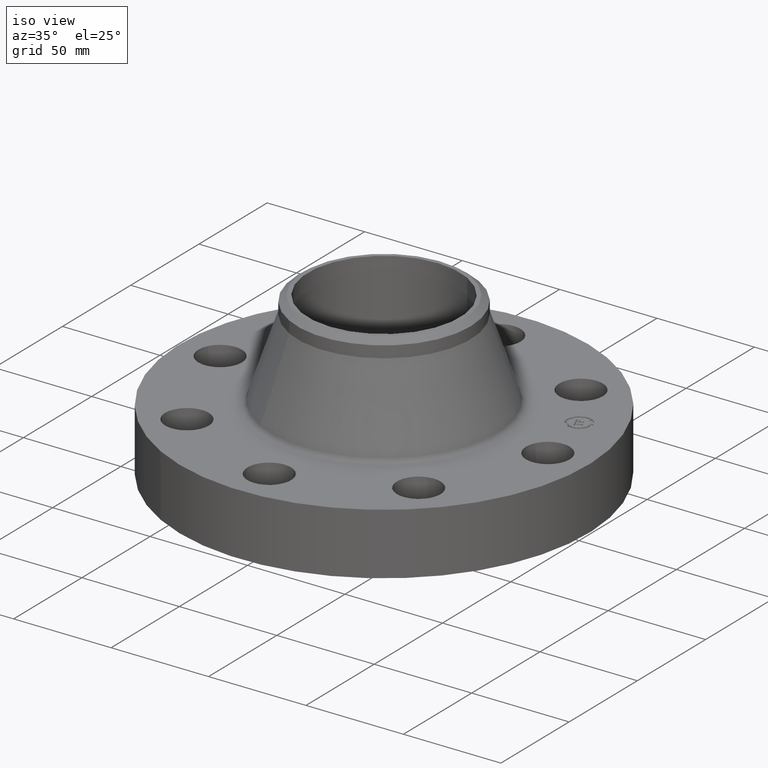
[diagram: clean part render]
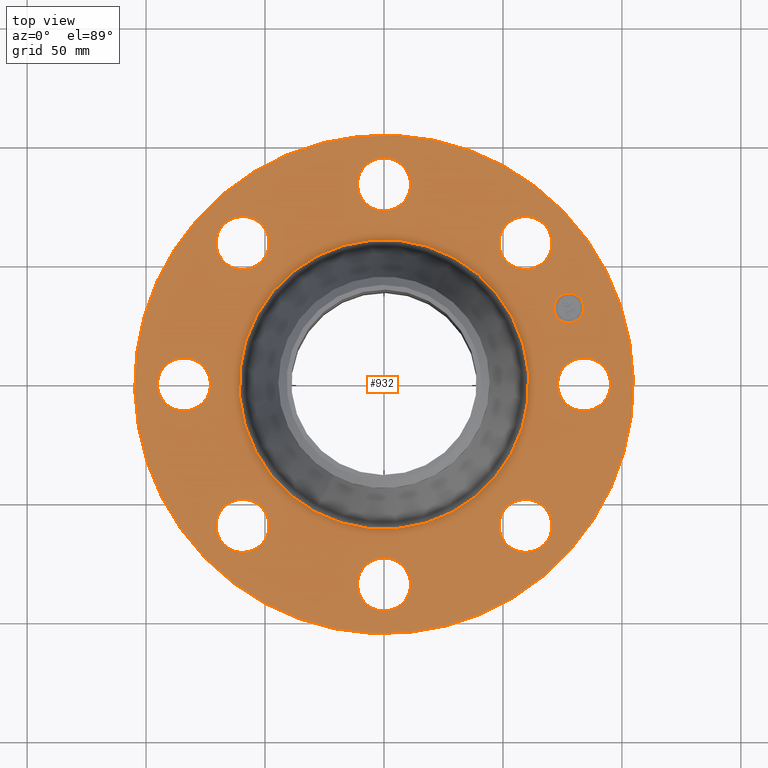
[diagram: tour spotlight — one face highlighted and labeled with its STEP entity id]
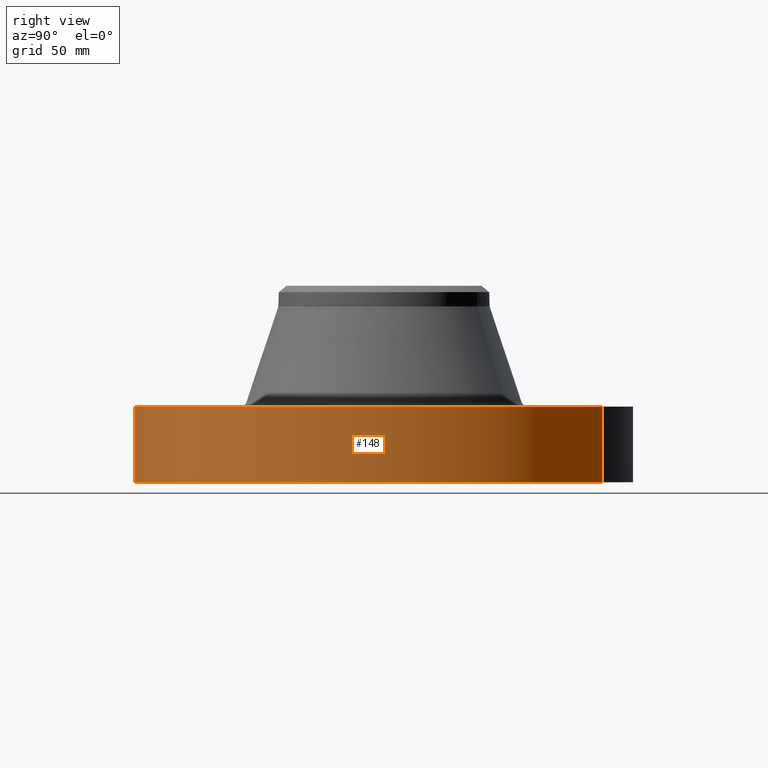
[diagram: tour spotlight — one face highlighted and labeled with its STEP entity id]
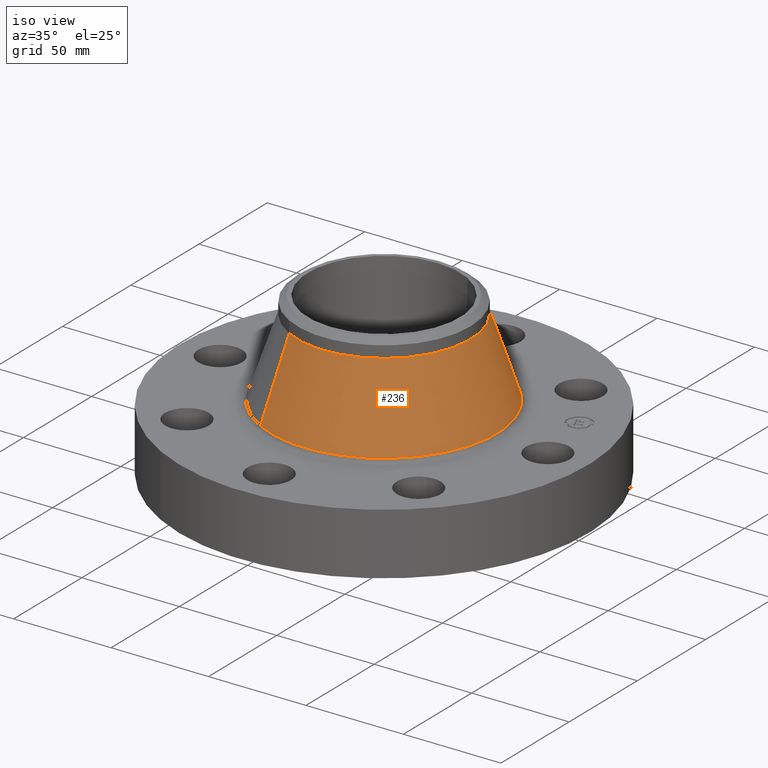
[diagram: tour spotlight — one face highlighted and labeled with its STEP entity id]
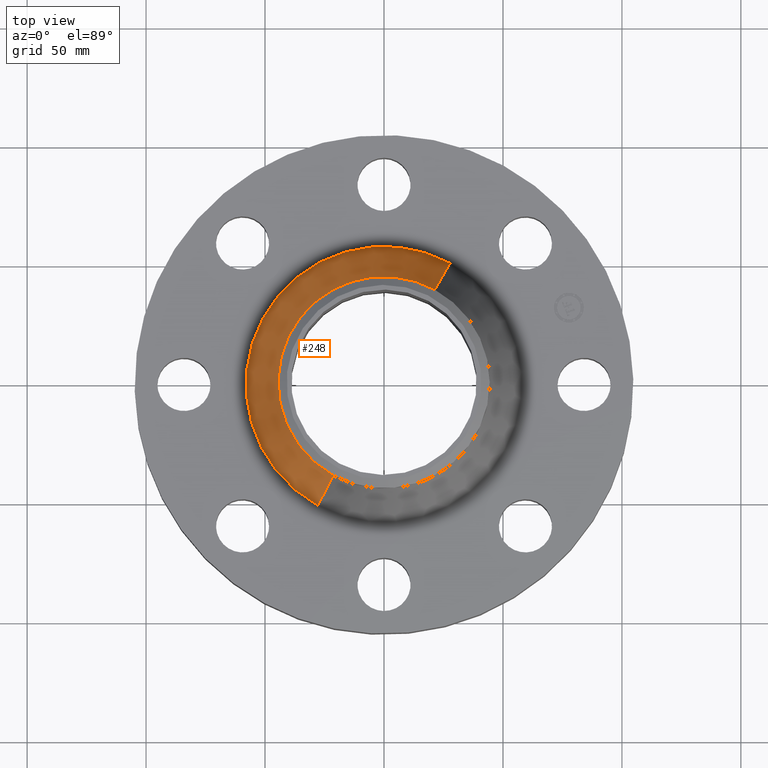
[diagram: tour spotlight — one face highlighted and labeled with its STEP entity id]
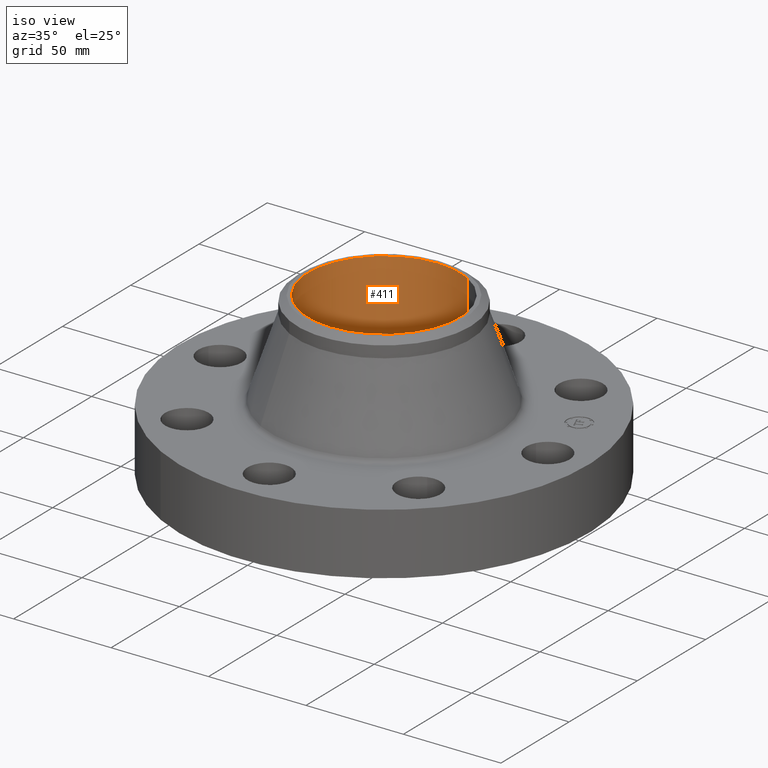
[diagram: tour spotlight — one face highlighted and labeled with its STEP entity id]
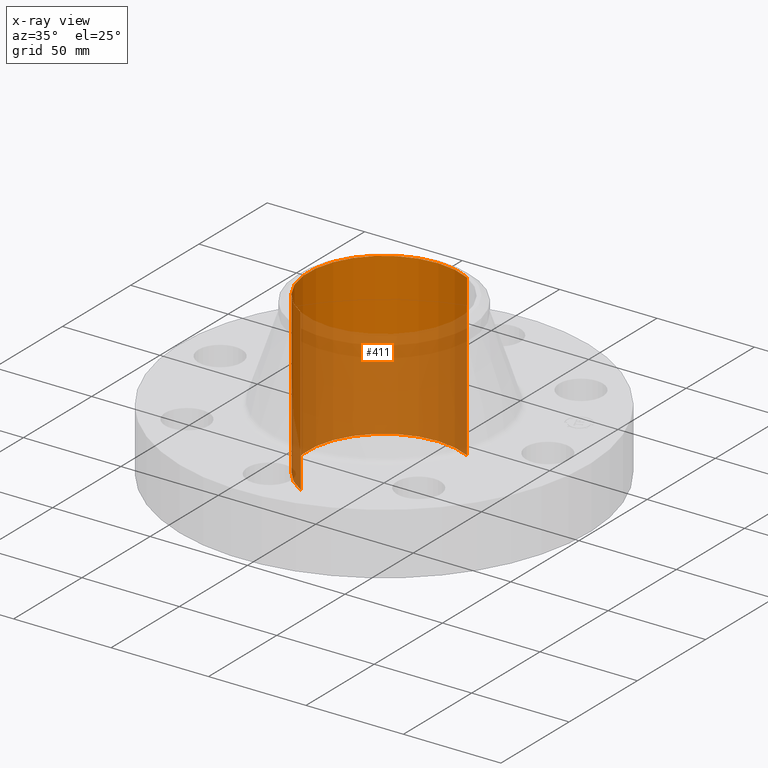
[diagram: x-ray of the same camera — body ghosted, this tour face saturated]
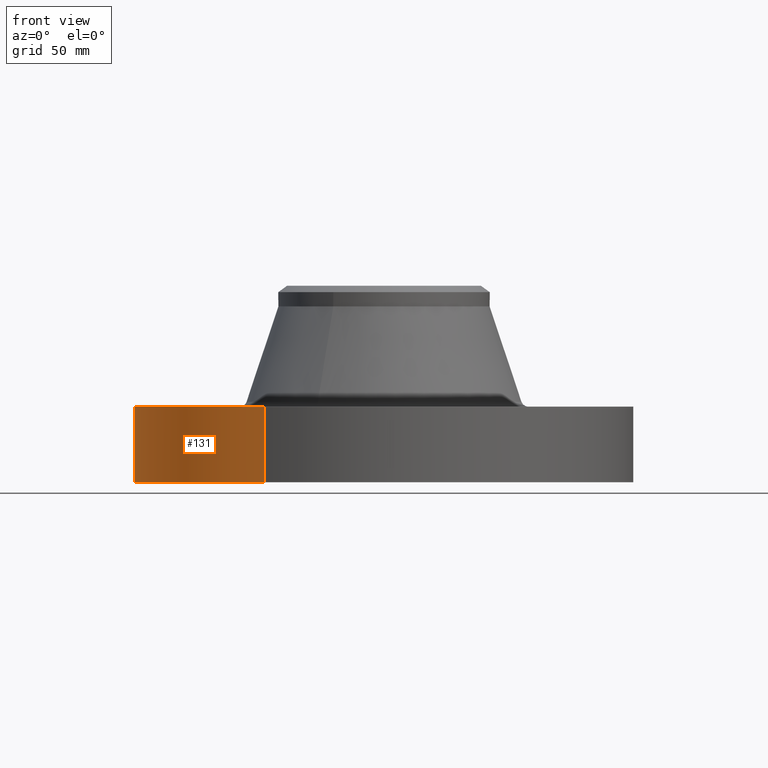
[diagram: tour spotlight — one face highlighted and labeled with its STEP entity id]
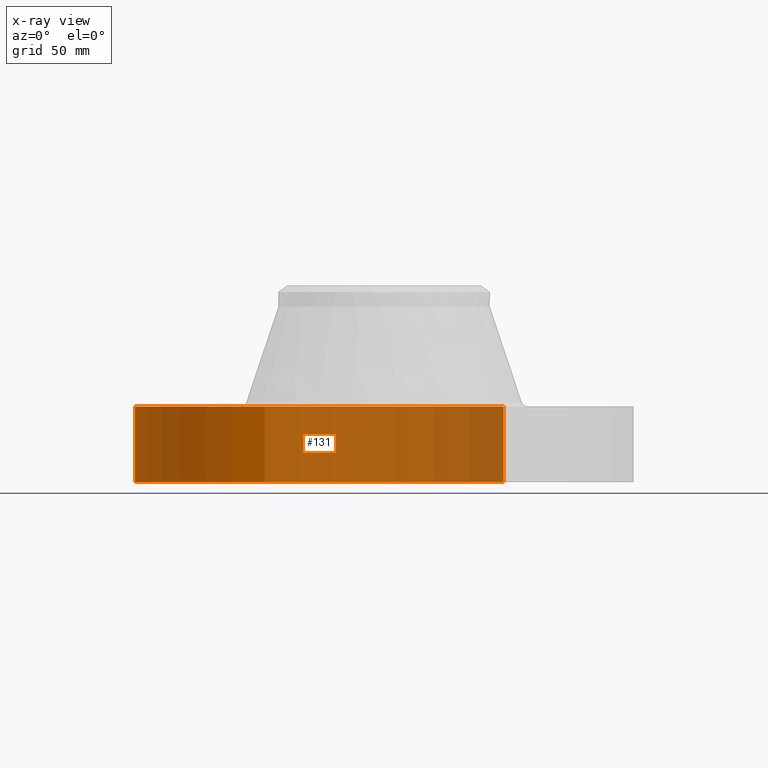
[diagram: x-ray of the same camera — body ghosted, this tour face saturated]
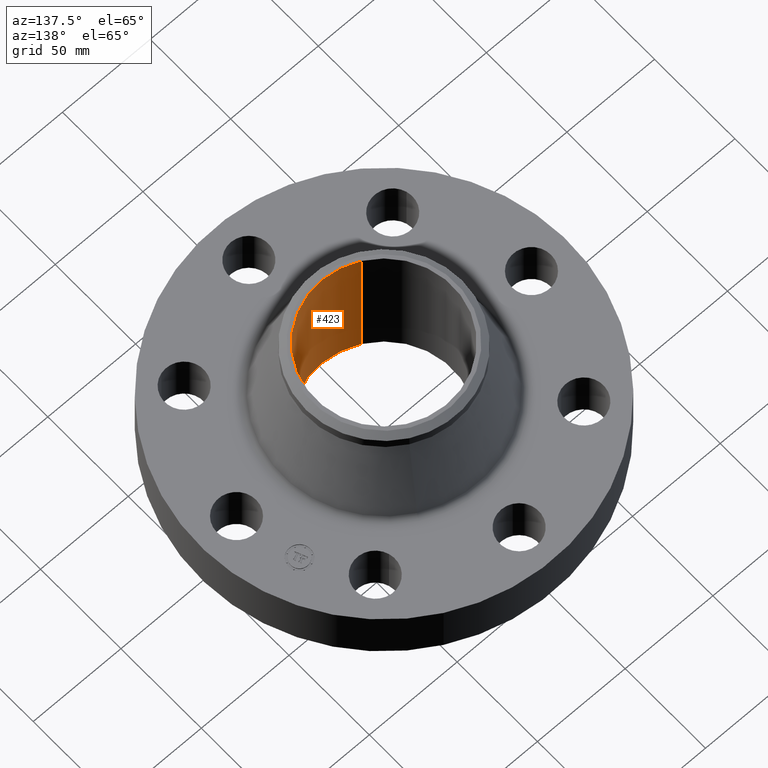
[diagram: tour spotlight — one face highlighted and labeled with its STEP entity id]
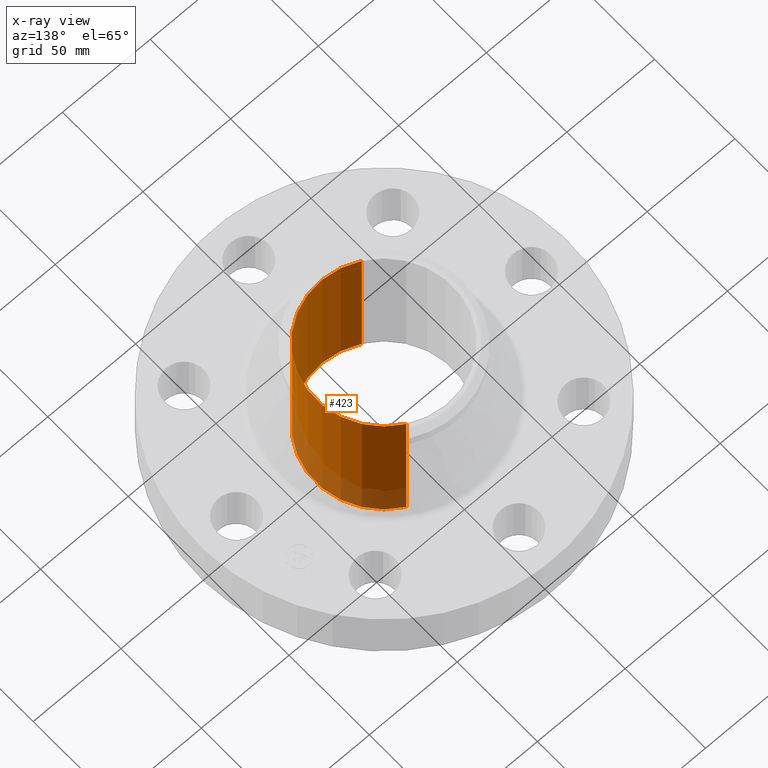
[diagram: x-ray of the same camera — body ghosted, this tour face saturated]
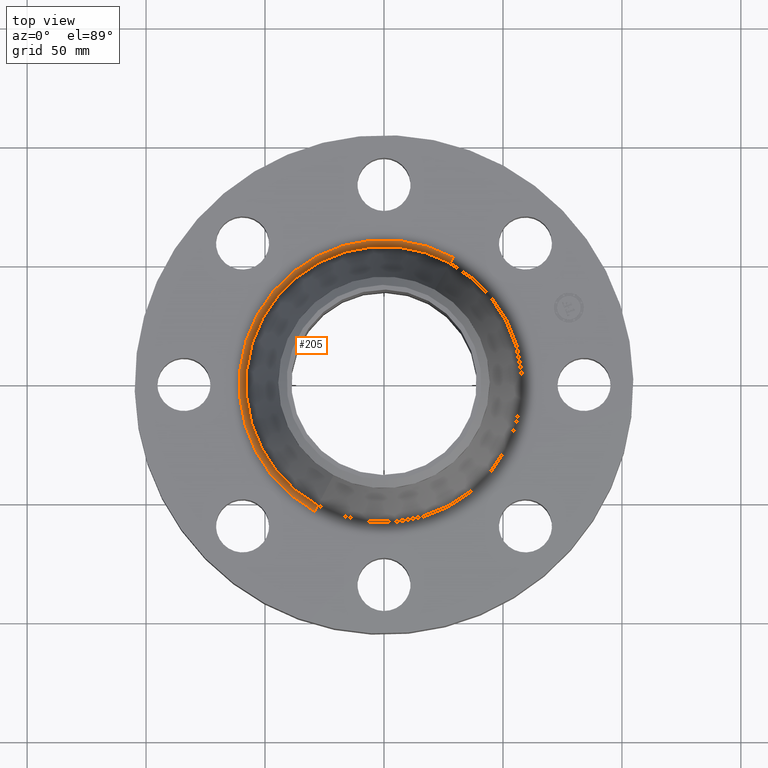
[diagram: tour spotlight — one face highlighted and labeled with its STEP entity id]
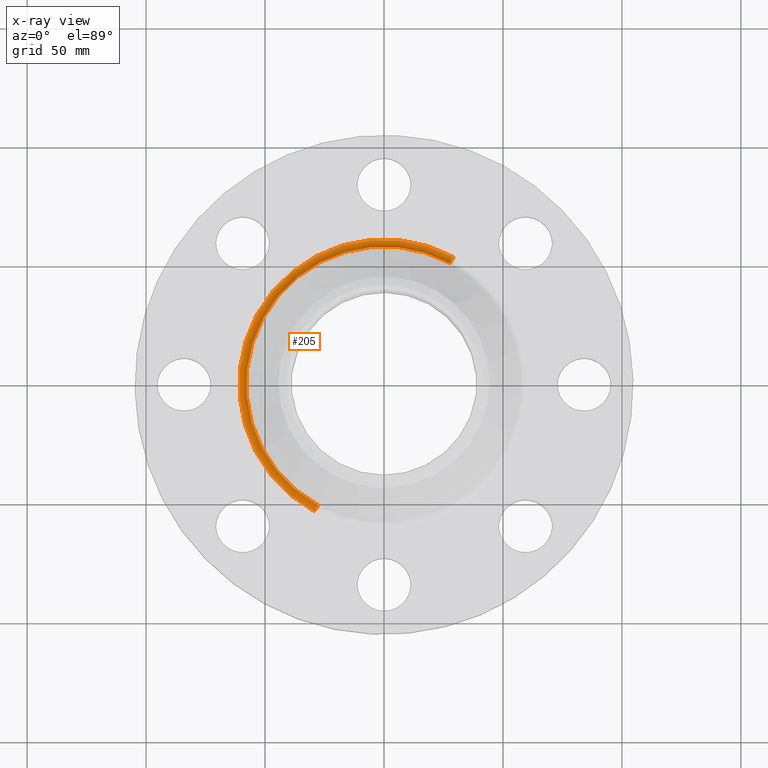
[diagram: x-ray of the same camera — body ghosted, this tour face saturated]
A machine part: a face-by-face anatomy tour. The part has 416 B-rep faces; the first image is the clean iso view, then the 8 largest visible faces are spotlighted one at a time (largest first), each with its STEP entity span.

Face 1 — top view, entity #932. In plain terms, the highlighted planar face has unit normal (0, 0, -1).
Definition (entity closure, byte-faithful):
#65=AXIS2_PLACEMENT_3D('Circle Axis2P3D',#63,#64,$) ;
#82=AXIS2_PLACEMENT_3D('Circle Axis2P3D',#80,#81,$) ;
#115=AXIS2_PLACEMENT_3D('Circle Axis2P3D',#113,#114,$) ;
#139=AXIS2_PLACEMENT_3D('Circle Axis2P3D',#137,#138,$) ;
#156=AXIS2_PLACEMENT_3D('Circle Axis2P3D',#154,#155,$) ;
#191=AXIS2_PLACEMENT_3D('Circle Axis2P3D',#189,#190,$) ;
#589=AXIS2_PLACEMENT_3D('Circle Axis2P3D',#587,#588,$) ;
#601=AXIS2_PLACEMENT_3D('Circle Axis2P3D',#599,#600,$) ;
#632=AXIS2_PLACEMENT_3D('Circle Axis2P3D',#630,#631,$) ;
#644=AXIS2_PLACEMENT_3D('Circle Axis2P3D',#642,#643,$) ;
#675=AXIS2_PLACEMENT_3D('Circle Axis2P3D',#673,#674,$) ;
#687=AXIS2_PLACEMENT_3D('Circle Axis2P3D',#685,#686,$) ;
#718=AXIS2_PLACEMENT_3D('Circle Axis2P3D',#716,#717,$) ;
#730=AXIS2_PLACEMENT_3D('Circle Axis2P3D',#728,#729,$) ;
#761=AXIS2_PLACEMENT_3D('Circle Axis2P3D',#759,#760,$) ;
#773=AXIS2_PLACEMENT_3D('Circle Axis2P3D',#771,#772,$) ;
#804=AXIS2_PLACEMENT_3D('Circle Axis2P3D',#802,#803,$) ;
#816=AXIS2_PLACEMENT_3D('Circle Axis2P3D',#814,#815,$) ;
#847=AXIS2_PLACEMENT_3D('Circle Axis2P3D',#845,#846,$) ;
#859=AXIS2_PLACEMENT_3D('Circle Axis2P3D',#857,#858,$) ;
#872=AXIS2_PLACEMENT_3D('Plane Axis2P3D',#869,#870,#871) ;
#916=AXIS2_PLACEMENT_3D('Circle Axis2P3D',#914,#915,$) ;
#925=AXIS2_PLACEMENT_3D('Circle Axis2P3D',#923,#924,$) ;
#46=CARTESIAN_POINT('Vertex',(2.92386367278,0.210947236987,1.25000000001)) ;
#60=CARTESIAN_POINT('Vertex',(3.69613632725,-0.210947236987,1.25000000001)) ;
#63=CARTESIAN_POINT('Axis2P3D Location',(3.31000000001,0.,1.25000000001)) ;
#80=CARTESIAN_POINT('Axis2P3D Location',(3.31000000001,0.,1.25000000001)) ;
#110=CARTESIAN_POINT('Vertex',(-1.97763034675,-3.62002806781,1.25000000001)) ;
#113=CARTESIAN_POINT('Axis2P3D Location',(0.,0.,1.25000000001)) ;
#117=CARTESIAN_POINT('Vertex',(1.97763034675,3.62002806781,1.25000000001)) ;
#137=CARTESIAN_POINT('Axis2P3D Location',(0.,0.,1.25000000001)) ;
#154=CARTESIAN_POINT('Axis2P3D Location',(0.,0.,1.25000000001)) ;
#158=CARTESIAN_POINT('Vertex',(1.14876916276,2.10280784752,1.25000000001)) ;
#160=CARTESIAN_POINT('Vertex',(-1.14876916276,-2.10280784752,1.25000000001)) ;
#189=CARTESIAN_POINT('Axis2P3D Location',(0.,0.,1.25000000001)) ;
#577=CARTESIAN_POINT('Vertex',(-2.21664605203,1.91832160854,1.25000000001)) ;
#584=CARTESIAN_POINT('Vertex',(-2.46440083944,2.76272528293,1.25000000001)) ;
#587=CARTESIAN_POINT('Axis2P3D Location',(-2.34052344574,2.34052344574,1.25000000001)) ;
#599=CARTESIAN_POINT('Axis2P3D Location',(-2.34052344574,2.34052344574,1.25000000001)) ;
#620=CARTESIAN_POINT('Vertex',(0.210947236987,-2.92386367278,1.25000000001)) ;
#627=CARTESIAN_POINT('Vertex',(-0.210947236987,-3.69613632725,1.25000000001)) ;
#630=CARTESIAN_POINT('Axis2P3D Location',(-3.56803423843E-016,-3.31000000001,1.25000000001)) ;
#642=CARTESIAN_POINT('Axis2P3D Location',(-3.56803423843E-016,-3.31000000001,1.25000000001)) ;
#663=CARTESIAN_POINT('Vertex',(-0.210947236987,2.92386367278,1.25000000001)) ;
#670=CARTESIAN_POINT('Vertex',(0.210947236987,3.69613632725,1.25000000001)) ;
#673=CARTESIAN_POINT('Axis2P3D Location',(-6.08037135779E-016,3.31000000001,1.25000000001)) ;
#685=CARTESIAN_POINT('Axis2P3D Location',(-6.08037135779E-016,3.31000000001,1.25000000001)) ;
#706=CARTESIAN_POINT('Vertex',(-1.91832160854,-2.21664605203,1.25000000001)) ;
#713=CARTESIAN_POINT('Vertex',(-2.76272528293,-2.46440083944,1.25000000001)) ;
#716=CARTESIAN_POINT('Axis2P3D Location',(-2.34052344574,-2.34052344574,1.25000000001)) ;
#728=CARTESIAN_POINT('Axis2P3D Location',(-2.34052344574,-2.34052344574,1.25000000001)) ;
#749=CARTESIAN_POINT('Vertex',(1.91832160854,2.21664605203,1.25000000001)) ;
#756=CARTESIAN_POINT('Vertex',(2.76272528293,2.46440083944,1.25000000001)) ;
#759=CARTESIAN_POINT('Axis2P3D Location',(2.34052344574,2.34052344574,1.25000000001)) ;
#771=CARTESIAN_POINT('Axis2P3D Location',(2.34052344574,2.34052344574,1.25000000001)) ;
#792=CARTESIAN_POINT('Vertex',(-2.92386367278,-0.210947236987,1.25000000001)) ;
#799=CARTESIAN_POINT('Vertex',(-3.69613632725,0.210947236987,1.25000000001)) ;
#802=CARTESIAN_POINT('Axis2P3D Location',(-3.31000000001,-4.05358090519E-016,1.25000000001)) ;
#814=CARTESIAN_POINT('Axis2P3D Location',(-3.31000000001,-4.05358090519E-016,1.25000000001)) ;
#835=CARTESIAN_POINT('Vertex',(2.21664605203,-1.91832160854,1.25000000001)) ;
#842=CARTESIAN_POINT('Vertex',(2.46440083944,-2.76272528293,1.25000000001)) ;
#845=CARTESIAN_POINT('Axis2P3D Location',(2.34052344574,-2.34052344574,1.25000000001)) ;
#857=CARTESIAN_POINT('Axis2P3D Location',(2.34052344574,-2.34052344574,1.25000000001)) ;
#869=CARTESIAN_POINT('Axis2P3D Location',(0.,4.12500000002,1.25000000001)) ;
#914=CARTESIAN_POINT('Axis2P3D Location',(3.05804125262,1.26668216113,1.25000000001)) ;
#918=CARTESIAN_POINT('Vertex',(2.96332710311,1.49534234543,1.25000000001)) ;
#920=CARTESIAN_POINT('Vertex',(3.15275540214,1.03802197684,1.25000000001)) ;
#923=CARTESIAN_POINT('Axis2P3D Location',(3.05804125262,1.26668216113,1.25000000001)) ;
#64=DIRECTION('Axis2P3D Direction',(0.,-0.,-0.0393700787402)) ;
#81=DIRECTION('Axis2P3D Direction',(0.,-0.,-0.0393700787402)) ;
#114=DIRECTION('Axis2P3D Direction',(0.,0.,-0.0393700787402)) ;
#138=DIRECTION('Axis2P3D Direction',(0.,0.,-0.0393700787402)) ;
#155=DIRECTION('Axis2P3D Direction',(0.,0.,-0.0393700787402)) ;
#190=DIRECTION('Axis2P3D Direction',(0.,0.,-0.0393700787402)) ;
#588=DIRECTION('Axis2P3D Direction',(0.,0.,-0.0393700787402)) ;
#600=DIRECTION('Axis2P3D Direction',(0.,0.,-0.0393700787402)) ;
#631=DIRECTION('Axis2P3D Direction',(0.,-0.,-0.0393700787402)) ;
#643=DIRECTION('Axis2P3D Direction',(0.,-0.,-0.0393700787402)) ;
#674=DIRECTION('Axis2P3D Direction',(0.,0.,-0.0393700787402)) ;
#686=DIRECTION('Axis2P3D Direction',(0.,0.,-0.0393700787402)) ;
#717=DIRECTION('Axis2P3D Direction',(-0.,0.,-0.0393700787402)) ;
#729=DIRECTION('Axis2P3D Direction',(-0.,0.,-0.0393700787402)) ;
#760=DIRECTION('Axis2P3D Direction',(0.,0.,-0.0393700787402)) ;
#772=DIRECTION('Axis2P3D Direction',(0.,0.,-0.0393700787402)) ;
#803=DIRECTION('Axis2P3D Direction',(-0.,0.,-0.0393700787402)) ;
#815=DIRECTION('Axis2P3D Direction',(-0.,0.,-0.0393700787402)) ;
#846=DIRECTION('Axis2P3D Direction',(0.,-0.,-0.0393700787402)) ;
#858=DIRECTION('Axis2P3D Direction',(0.,-0.,-0.0393700787402)) ;
#870=DIRECTION('Axis2P3D Direction',(0.,0.,-0.0393700787402)) ;
#871=DIRECTION('Axis2P3D XDirection',(0.0393700787402,0.,0.)) ;
#915=DIRECTION('Axis2P3D Direction',(0.,0.,-0.0393700787402)) ;
#924=DIRECTION('Axis2P3D Direction',(0.,0.,-0.0393700787402)) ;
#875=ORIENTED_EDGE('',*,*,#141,.F.) ;
#876=ORIENTED_EDGE('',*,*,#119,.F.) ;
#879=ORIENTED_EDGE('',*,*,#67,.T.) ;
#880=ORIENTED_EDGE('',*,*,#84,.T.) ;
#883=ORIENTED_EDGE('',*,*,#193,.T.) ;
#884=ORIENTED_EDGE('',*,*,#162,.T.) ;
#887=ORIENTED_EDGE('',*,*,#861,.T.) ;
#888=ORIENTED_EDGE('',*,*,#849,.T.) ;
#891=ORIENTED_EDGE('',*,*,#646,.T.) ;
#892=ORIENTED_EDGE('',*,*,#634,.T.) ;
#895=ORIENTED_EDGE('',*,*,#732,.T.) ;
#896=ORIENTED_EDGE('',*,*,#720,.T.) ;
#899=ORIENTED_EDGE('',*,*,#818,.T.) ;
#900=ORIENTED_EDGE('',*,*,#806,.T.) ;
#903=ORIENTED_EDGE('',*,*,#603,.T.) ;
#904=ORIENTED_EDGE('',*,*,#591,.T.) ;
#907=ORIENTED_EDGE('',*,*,#689,.T.) ;
#908=ORIENTED_EDGE('',*,*,#677,.T.) ;
#911=ORIENTED_EDGE('',*,*,#775,.T.) ;
#912=ORIENTED_EDGE('',*,*,#763,.T.) ;
#929=ORIENTED_EDGE('',*,*,#922,.T.) ;
#930=ORIENTED_EDGE('',*,*,#927,.T.) ;
#881=FACE_BOUND('',#878,.T.) ;
#885=FACE_BOUND('',#882,.T.) ;
#889=FACE_BOUND('',#886,.T.) ;
#893=FACE_BOUND('',#890,.T.) ;
#897=FACE_BOUND('',#894,.T.) ;
#901=FACE_BOUND('',#898,.T.) ;
#905=FACE_BOUND('',#902,.T.) ;
#909=FACE_BOUND('',#906,.T.) ;
#913=FACE_BOUND('',#910,.T.) ;
#931=FACE_BOUND('',#928,.T.) ;
#932=ADVANCED_FACE('PartBody',(#877,#881,#885,#889,#893,#897,#901,#905,#909,#913,#931),#873,.F.) ;
#66=CIRCLE('generated circle',#65,0.440000000002) ;
#83=CIRCLE('generated circle',#82,0.440000000002) ;
#116=CIRCLE('generated circle',#115,4.12500000002) ;
#140=CIRCLE('generated circle',#139,4.12500000002) ;
#157=CIRCLE('generated circle',#156,2.39613677258) ;
#192=CIRCLE('generated circle',#191,2.39613677258) ;
#590=CIRCLE('generated circle',#589,0.440000000002) ;
#602=CIRCLE('generated circle',#601,0.440000000002) ;
#633=CIRCLE('generated circle',#632,0.440000000002) ;
#645=CIRCLE('generated circle',#644,0.440000000002) ;
#676=CIRCLE('generated circle',#675,0.440000000002) ;
#688=CIRCLE('generated circle',#687,0.440000000002) ;
#719=CIRCLE('generated circle',#718,0.440000000002) ;
#731=CIRCLE('generated circle',#730,0.440000000002) ;
#762=CIRCLE('generated circle',#761,0.440000000002) ;
#774=CIRCLE('generated circle',#773,0.440000000002) ;
#805=CIRCLE('generated circle',#804,0.440000000002) ;
#817=CIRCLE('generated circle',#816,0.440000000002) ;
#848=CIRCLE('generated circle',#847,0.440000000002) ;
#860=CIRCLE('generated circle',#859,0.440000000002) ;
#917=CIRCLE('generated circle',#916,0.247500000001) ;
#926=CIRCLE('generated circle',#925,0.247500000001) ;
#67=EDGE_CURVE('',#47,#61,#66,.T.) ;
#84=EDGE_CURVE('',#61,#47,#83,.T.) ;
#119=EDGE_CURVE('',#111,#118,#116,.T.) ;
#141=EDGE_CURVE('',#118,#111,#140,.T.) ;
#162=EDGE_CURVE('',#159,#161,#157,.T.) ;
#193=EDGE_CURVE('',#161,#159,#192,.T.) ;
#591=EDGE_CURVE('',#578,#585,#590,.T.) ;
#603=EDGE_CURVE('',#585,#578,#602,.T.) ;
#634=EDGE_CURVE('',#621,#628,#633,.T.) ;
#646=EDGE_CURVE('',#628,#621,#645,.T.) ;
#677=EDGE_CURVE('',#664,#671,#676,.T.) ;
#689=EDGE_CURVE('',#671,#664,#688,.T.) ;
#720=EDGE_CURVE('',#707,#714,#719,.T.) ;
#732=EDGE_CURVE('',#714,#707,#731,.T.) ;
#763=EDGE_CURVE('',#750,#757,#762,.T.) ;
#775=EDGE_CURVE('',#757,#750,#774,.T.) ;
#806=EDGE_CURVE('',#793,#800,#805,.T.) ;
#818=EDGE_CURVE('',#800,#793,#817,.T.) ;
#849=EDGE_CURVE('',#836,#843,#848,.T.) ;
#861=EDGE_CURVE('',#843,#836,#860,.T.) ;
#922=EDGE_CURVE('',#919,#921,#917,.T.) ;
#927=EDGE_CURVE('',#921,#919,#926,.T.) ;
#874=EDGE_LOOP('',(#875,#876)) ;
#878=EDGE_LOOP('',(#879,#880)) ;
#882=EDGE_LOOP('',(#883,#884)) ;
#886=EDGE_LOOP('',(#887,#888)) ;
#890=EDGE_LOOP('',(#891,#892)) ;
#894=EDGE_LOOP('',(#895,#896)) ;
#898=EDGE_LOOP('',(#899,#900)) ;
#902=EDGE_LOOP('',(#903,#904)) ;
#906=EDGE_LOOP('',(#907,#908)) ;
#910=EDGE_LOOP('',(#911,#912)) ;
#928=EDGE_LOOP('',(#929,#930)) ;
#877=FACE_OUTER_BOUND('',#874,.T.) ;
#873=PLANE('',#872) ;
#47=VERTEX_POINT('',#46) ;
#61=VERTEX_POINT('',#60) ;
#111=VERTEX_POINT('',#110) ;
#118=VERTEX_POINT('',#117) ;
#159=VERTEX_POINT('',#158) ;
#161=VERTEX_POINT('',#160) ;
#578=VERTEX_POINT('',#577) ;
#585=VERTEX_POINT('',#584) ;
#621=VERTEX_POINT('',#620) ;
#628=VERTEX_POINT('',#627) ;
#664=VERTEX_POINT('',#663) ;
#671=VERTEX_POINT('',#670) ;
#707=VERTEX_POINT('',#706) ;
#714=VERTEX_POINT('',#713) ;
#750=VERTEX_POINT('',#749) ;
#757=VERTEX_POINT('',#756) ;
#793=VERTEX_POINT('',#792) ;
#800=VERTEX_POINT('',#799) ;
#836=VERTEX_POINT('',#835) ;
#843=VERTEX_POINT('',#842) ;
#919=VERTEX_POINT('',#918) ;
#921=VERTEX_POINT('',#920) ;

Face 2 — right view, entity #148. In plain terms, the highlighted cylindrical surface (partial cylindrical patch) has radius 104.775 mm, axis along (0, 0, -1).
Definition (entity closure, byte-faithful):
#95=AXIS2_PLACEMENT_3D('Cylinder Axis2P3D',#92,#93,#94) ;
#134=AXIS2_PLACEMENT_3D('Circle Axis2P3D',#132,#133,$) ;
#139=AXIS2_PLACEMENT_3D('Circle Axis2P3D',#137,#138,$) ;
#92=CARTESIAN_POINT('Axis2P3D Location',(0.,0.,1.62500000001)) ;
#101=CARTESIAN_POINT('Vertex',(-1.97763034675,-3.62002806781,0.)) ;
#103=CARTESIAN_POINT('Vertex',(1.97763034675,3.62002806781,0.)) ;
#106=CARTESIAN_POINT('Line Origine',(-1.97763034675,-3.62002806781,0.625000000003)) ;
#110=CARTESIAN_POINT('Vertex',(-1.97763034675,-3.62002806781,1.25000000001)) ;
#117=CARTESIAN_POINT('Vertex',(1.97763034675,3.62002806781,1.25000000001)) ;
#120=CARTESIAN_POINT('Line Origine',(1.97763034675,3.62002806781,0.625000000003)) ;
#132=CARTESIAN_POINT('Axis2P3D Location',(0.,0.,0.)) ;
#137=CARTESIAN_POINT('Axis2P3D Location',(0.,0.,1.25000000001)) ;
#93=DIRECTION('Axis2P3D Direction',(0.,0.,-0.0393700787402)) ;
#94=DIRECTION('Axis2P3D XDirection',(0.0188750212049,0.0345504945626,0.)) ;
#107=DIRECTION('Vector Direction',(0.,0.,-0.0393700787402)) ;
#121=DIRECTION('Vector Direction',(0.,0.,-0.0393700787402)) ;
#133=DIRECTION('Axis2P3D Direction',(0.,0.,-0.0393700787402)) ;
#138=DIRECTION('Axis2P3D Direction',(0.,0.,-0.0393700787402)) ;
#108=VECTOR('Line Direction',#107,0.0393700787402) ;
#122=VECTOR('Line Direction',#121,0.0393700787402) ;
#143=ORIENTED_EDGE('',*,*,#136,.F.) ;
#144=ORIENTED_EDGE('',*,*,#124,.T.) ;
#145=ORIENTED_EDGE('',*,*,#141,.T.) ;
#146=ORIENTED_EDGE('',*,*,#112,.F.) ;
#148=ADVANCED_FACE('PartBody',(#147),#96,.T.) ;
#135=CIRCLE('generated circle',#134,4.12500000002) ;
#140=CIRCLE('generated circle',#139,4.12500000002) ;
#96=CYLINDRICAL_SURFACE('generated cylinder',#95,4.12500000002) ;
#112=EDGE_CURVE('',#102,#111,#109,.F.) ;
#124=EDGE_CURVE('',#104,#118,#123,.F.) ;
#136=EDGE_CURVE('',#104,#102,#135,.T.) ;
#141=EDGE_CURVE('',#118,#111,#140,.T.) ;
#142=EDGE_LOOP('',(#143,#144,#145,#146)) ;
#147=FACE_OUTER_BOUND('',#142,.T.) ;
#109=LINE('Line',#106,#108) ;
#123=LINE('Line',#120,#122) ;
#102=VERTEX_POINT('',#101) ;
#104=VERTEX_POINT('',#103) ;
#111=VERTEX_POINT('',#110) ;
#118=VERTEX_POINT('',#117) ;

Face 3 — iso view, entity #236. In plain terms, the highlighted conical surface has half-angle 18.658 deg.
Definition (entity closure, byte-faithful):
#172=AXIS2_PLACEMENT_3D('Circle Axis2P3D',#170,#171,$) ;
#209=AXIS2_PLACEMENT_3D('Cone Axis2P3D',#206,#207,#208) ;
#220=AXIS2_PLACEMENT_3D('Circle Axis2P3D',#218,#219,$) ;
#167=CARTESIAN_POINT('Vertex',(1.09426162229,2.00303246395,1.33160988584)) ;
#170=CARTESIAN_POINT('Axis2P3D Location',(0.,0.,1.33160988584)) ;
#174=CARTESIAN_POINT('Vertex',(-1.09426162229,-2.00303246395,1.33160988584)) ;
#206=CARTESIAN_POINT('Axis2P3D Location',(0.,0.,2.90845634604)) ;
#211=CARTESIAN_POINT('Line Origine',(0.966628157427,1.76940097363,2.12003311594)) ;
#215=CARTESIAN_POINT('Vertex',(0.838994692561,1.53576948331,2.90845634604)) ;
#218=CARTESIAN_POINT('Axis2P3D Location',(0.,0.,2.90845634604)) ;
#222=CARTESIAN_POINT('Vertex',(-0.838994692561,-1.53576948331,2.90845634604)) ;
#225=CARTESIAN_POINT('Line Origine',(-0.966628157427,-1.76940097363,2.12003311594)) ;
#171=DIRECTION('Axis2P3D Direction',(0.,0.,-0.0393700787402)) ;
#207=DIRECTION('Axis2P3D Direction',(0.,0.,-0.0393700787402)) ;
#208=DIRECTION('Axis2P3D XDirection',(-0.0188750212049,-0.0345504945626,0.)) ;
#212=DIRECTION('Vector Direction',(0.00603845182398,0.0110533119219,-0.0373009985809)) ;
#219=DIRECTION('Axis2P3D Direction',(0.,0.,-0.0393700787402)) ;
#226=DIRECTION('Vector Direction',(-0.00603845182398,-0.0110533119219,-0.0373009985809)) ;
#213=VECTOR('Line Direction',#212,0.0393700787402) ;
#227=VECTOR('Line Direction',#226,0.0393700787402) ;
#231=ORIENTED_EDGE('',*,*,#176,.F.) ;
#232=ORIENTED_EDGE('',*,*,#217,.T.) ;
#233=ORIENTED_EDGE('',*,*,#224,.T.) ;
#234=ORIENTED_EDGE('',*,*,#229,.F.) ;
#236=ADVANCED_FACE('PartBody',(#235),#210,.T.) ;
#173=CIRCLE('generated circle',#172,2.2824433289) ;
#221=CIRCLE('generated circle',#220,1.75000000001) ;
#210=CONICAL_SURFACE('Cone',#209,1.75000000001,0.325642534325) ;
#176=EDGE_CURVE('',#168,#175,#173,.T.) ;
#217=EDGE_CURVE('',#168,#216,#214,.F.) ;
#224=EDGE_CURVE('',#216,#223,#221,.T.) ;
#229=EDGE_CURVE('',#175,#223,#228,.F.) ;
#230=EDGE_LOOP('',(#231,#232,#233,#234)) ;
#235=FACE_OUTER_BOUND('',#230,.T.) ;
#214=LINE('Line',#211,#213) ;
#228=LINE('Line',#225,#227) ;
#168=VERTEX_POINT('',#167) ;
#175=VERTEX_POINT('',#174) ;
#216=VERTEX_POINT('',#215) ;
#223=VERTEX_POINT('',#222) ;

Face 4 — top view, entity #248. In plain terms, the highlighted conical surface has half-angle 18.658 deg.
Definition (entity closure, byte-faithful):
#196=AXIS2_PLACEMENT_3D('Circle Axis2P3D',#194,#195,$) ;
#209=AXIS2_PLACEMENT_3D('Cone Axis2P3D',#206,#207,#208) ;
#239=AXIS2_PLACEMENT_3D('Circle Axis2P3D',#237,#238,$) ;
#167=CARTESIAN_POINT('Vertex',(1.09426162229,2.00303246395,1.33160988584)) ;
#174=CARTESIAN_POINT('Vertex',(-1.09426162229,-2.00303246395,1.33160988584)) ;
#194=CARTESIAN_POINT('Axis2P3D Location',(0.,0.,1.33160988584)) ;
#206=CARTESIAN_POINT('Axis2P3D Location',(0.,0.,2.90845634604)) ;
#211=CARTESIAN_POINT('Line Origine',(0.966628157427,1.76940097363,2.12003311594)) ;
#215=CARTESIAN_POINT('Vertex',(0.838994692561,1.53576948331,2.90845634604)) ;
#222=CARTESIAN_POINT('Vertex',(-0.838994692561,-1.53576948331,2.90845634604)) ;
#225=CARTESIAN_POINT('Line Origine',(-0.966628157427,-1.76940097363,2.12003311594)) ;
#237=CARTESIAN_POINT('Axis2P3D Location',(0.,0.,2.90845634604)) ;
#195=DIRECTION('Axis2P3D Direction',(0.,0.,-0.0393700787402)) ;
#207=DIRECTION('Axis2P3D Direction',(0.,0.,-0.0393700787402)) ;
#208=DIRECTION('Axis2P3D XDirection',(-0.0188750212049,-0.0345504945626,0.)) ;
#212=DIRECTION('Vector Direction',(0.00603845182398,0.0110533119219,-0.0373009985809)) ;
#226=DIRECTION('Vector Direction',(-0.00603845182398,-0.0110533119219,-0.0373009985809)) ;
#238=DIRECTION('Axis2P3D Direction',(0.,0.,-0.0393700787402)) ;
#213=VECTOR('Line Direction',#212,0.0393700787402) ;
#227=VECTOR('Line Direction',#226,0.0393700787402) ;
#243=ORIENTED_EDGE('',*,*,#198,.F.) ;
#244=ORIENTED_EDGE('',*,*,#229,.T.) ;
#245=ORIENTED_EDGE('',*,*,#241,.T.) ;
#246=ORIENTED_EDGE('',*,*,#217,.F.) ;
#248=ADVANCED_FACE('PartBody',(#247),#210,.T.) ;
#197=CIRCLE('generated circle',#196,2.2824433289) ;
#240=CIRCLE('generated circle',#239,1.75000000001) ;
#210=CONICAL_SURFACE('Cone',#209,1.75000000001,0.325642534325) ;
#198=EDGE_CURVE('',#175,#168,#197,.T.) ;
#217=EDGE_CURVE('',#168,#216,#214,.F.) ;
#229=EDGE_CURVE('',#175,#223,#228,.F.) ;
#241=EDGE_CURVE('',#223,#216,#240,.T.) ;
#242=EDGE_LOOP('',(#243,#244,#245,#246)) ;
#247=FACE_OUTER_BOUND('',#242,.T.) ;
#214=LINE('Line',#211,#213) ;
#228=LINE('Line',#225,#227) ;
#168=VERTEX_POINT('',#167) ;
#175=VERTEX_POINT('',#174) ;
#216=VERTEX_POINT('',#215) ;
#223=VERTEX_POINT('',#222) ;

Face 5 — iso view, entity #411. An x-ray twin of the same camera follows (body ghosted, this face saturated) — the face is partly hidden behind the body. In plain terms, the highlighted cylindrical surface (partial cylindrical patch) has radius 38.9636 mm, axis along (0, 0, -1).
Definition (entity closure, byte-faithful):
#356=AXIS2_PLACEMENT_3D('Circle Axis2P3D',#354,#355,$) ;
#384=AXIS2_PLACEMENT_3D('Cylinder Axis2P3D',#381,#382,#383) ;
#395=AXIS2_PLACEMENT_3D('Circle Axis2P3D',#393,#394,$) ;
#354=CARTESIAN_POINT('Axis2P3D Location',(0.,0.,3.25000000001)) ;
#358=CARTESIAN_POINT('Vertex',(-0.735438776222,-1.34621164995,3.25000000001)) ;
#360=CARTESIAN_POINT('Vertex',(0.735438776222,1.34621164995,3.25000000001)) ;
#381=CARTESIAN_POINT('Axis2P3D Location',(0.,0.,1.62500000001)) ;
#386=CARTESIAN_POINT('Line Origine',(-0.735438776222,-1.34621164995,1.62500000001)) ;
#390=CARTESIAN_POINT('Vertex',(-0.735438776222,-1.34621164995,-7.27327209833E-015)) ;
#393=CARTESIAN_POINT('Axis2P3D Location',(0.,0.,-7.27327209833E-015)) ;
#397=CARTESIAN_POINT('Vertex',(0.735438776222,1.34621164995,-7.27327209833E-015)) ;
#400=CARTESIAN_POINT('Line Origine',(0.735438776222,1.34621164995,1.62500000001)) ;
#355=DIRECTION('Axis2P3D Direction',(0.,0.,-0.0393700787402)) ;
#382=DIRECTION('Axis2P3D Direction',(0.,0.,-0.0393700787402)) ;
#383=DIRECTION('Axis2P3D XDirection',(0.0188750212049,0.0345504945626,0.)) ;
#387=DIRECTION('Vector Direction',(0.,0.,-0.0393700787402)) ;
#394=DIRECTION('Axis2P3D Direction',(0.,0.,-0.0393700787402)) ;
#401=DIRECTION('Vector Direction',(0.,0.,-0.0393700787402)) ;
#388=VECTOR('Line Direction',#387,0.0393700787402) ;
#402=VECTOR('Line Direction',#401,0.0393700787402) ;
#406=ORIENTED_EDGE('',*,*,#362,.F.) ;
#407=ORIENTED_EDGE('',*,*,#392,.T.) ;
#408=ORIENTED_EDGE('',*,*,#399,.T.) ;
#409=ORIENTED_EDGE('',*,*,#404,.F.) ;
#411=ADVANCED_FACE('PartBody',(#410),#385,.F.) ;
#357=CIRCLE('generated circle',#356,1.53400000001) ;
#396=CIRCLE('generated circle',#395,1.53400000001) ;
#385=CYLINDRICAL_SURFACE('generated cylinder',#384,1.53400000001) ;
#362=EDGE_CURVE('',#359,#361,#357,.T.) ;
#392=EDGE_CURVE('',#359,#391,#389,.T.) ;
#399=EDGE_CURVE('',#391,#398,#396,.T.) ;
#404=EDGE_CURVE('',#361,#398,#403,.T.) ;
#405=EDGE_LOOP('',(#406,#407,#408,#409)) ;
#410=FACE_OUTER_BOUND('',#405,.T.) ;
#389=LINE('Line',#386,#388) ;
#403=LINE('Line',#400,#402) ;
#359=VERTEX_POINT('',#358) ;
#361=VERTEX_POINT('',#360) ;
#391=VERTEX_POINT('',#390) ;
#398=VERTEX_POINT('',#397) ;

Face 6 — front view, entity #131. An x-ray twin of the same camera follows (body ghosted, this face saturated) — the face is partly hidden behind the body. In plain terms, the highlighted cylindrical surface (partial cylindrical patch) has radius 104.775 mm, axis along (0, 0, -1).
Definition (entity closure, byte-faithful):
#95=AXIS2_PLACEMENT_3D('Cylinder Axis2P3D',#92,#93,#94) ;
#99=AXIS2_PLACEMENT_3D('Circle Axis2P3D',#97,#98,$) ;
#115=AXIS2_PLACEMENT_3D('Circle Axis2P3D',#113,#114,$) ;
#92=CARTESIAN_POINT('Axis2P3D Location',(0.,0.,1.62500000001)) ;
#97=CARTESIAN_POINT('Axis2P3D Location',(0.,0.,0.)) ;
#101=CARTESIAN_POINT('Vertex',(-1.97763034675,-3.62002806781,0.)) ;
#103=CARTESIAN_POINT('Vertex',(1.97763034675,3.62002806781,0.)) ;
#106=CARTESIAN_POINT('Line Origine',(-1.97763034675,-3.62002806781,0.625000000003)) ;
#110=CARTESIAN_POINT('Vertex',(-1.97763034675,-3.62002806781,1.25000000001)) ;
#113=CARTESIAN_POINT('Axis2P3D Location',(0.,0.,1.25000000001)) ;
#117=CARTESIAN_POINT('Vertex',(1.97763034675,3.62002806781,1.25000000001)) ;
#120=CARTESIAN_POINT('Line Origine',(1.97763034675,3.62002806781,0.625000000003)) ;
#93=DIRECTION('Axis2P3D Direction',(0.,0.,-0.0393700787402)) ;
#94=DIRECTION('Axis2P3D XDirection',(0.0188750212049,0.0345504945626,0.)) ;
#98=DIRECTION('Axis2P3D Direction',(0.,0.,-0.0393700787402)) ;
#107=DIRECTION('Vector Direction',(0.,0.,-0.0393700787402)) ;
#114=DIRECTION('Axis2P3D Direction',(0.,0.,-0.0393700787402)) ;
#121=DIRECTION('Vector Direction',(0.,0.,-0.0393700787402)) ;
#108=VECTOR('Line Direction',#107,0.0393700787402) ;
#122=VECTOR('Line Direction',#121,0.0393700787402) ;
#126=ORIENTED_EDGE('',*,*,#105,.F.) ;
#127=ORIENTED_EDGE('',*,*,#112,.T.) ;
#128=ORIENTED_EDGE('',*,*,#119,.T.) ;
#129=ORIENTED_EDGE('',*,*,#124,.F.) ;
#131=ADVANCED_FACE('PartBody',(#130),#96,.T.) ;
#100=CIRCLE('generated circle',#99,4.12500000002) ;
#116=CIRCLE('generated circle',#115,4.12500000002) ;
#96=CYLINDRICAL_SURFACE('generated cylinder',#95,4.12500000002) ;
#105=EDGE_CURVE('',#102,#104,#100,.T.) ;
#112=EDGE_CURVE('',#102,#111,#109,.F.) ;
#119=EDGE_CURVE('',#111,#118,#116,.T.) ;
#124=EDGE_CURVE('',#104,#118,#123,.F.) ;
#125=EDGE_LOOP('',(#126,#127,#128,#129)) ;
#130=FACE_OUTER_BOUND('',#125,.T.) ;
#109=LINE('Line',#106,#108) ;
#123=LINE('Line',#120,#122) ;
#102=VERTEX_POINT('',#101) ;
#104=VERTEX_POINT('',#103) ;
#111=VERTEX_POINT('',#110) ;
#118=VERTEX_POINT('',#117) ;

Face 7 — auxiliary view, entity #423. An x-ray twin of the same camera follows (body ghosted, this face saturated) — the face is partly hidden behind the body. In plain terms, the highlighted cylindrical surface (partial cylindrical patch) has radius 38.9636 mm, axis along (0, 0, -1).
Definition (entity closure, byte-faithful):
#365=AXIS2_PLACEMENT_3D('Circle Axis2P3D',#363,#364,$) ;
#384=AXIS2_PLACEMENT_3D('Cylinder Axis2P3D',#381,#382,#383) ;
#414=AXIS2_PLACEMENT_3D('Circle Axis2P3D',#412,#413,$) ;
#358=CARTESIAN_POINT('Vertex',(-0.735438776222,-1.34621164995,3.25000000001)) ;
#360=CARTESIAN_POINT('Vertex',(0.735438776222,1.34621164995,3.25000000001)) ;
#363=CARTESIAN_POINT('Axis2P3D Location',(0.,0.,3.25000000001)) ;
#381=CARTESIAN_POINT('Axis2P3D Location',(0.,0.,1.62500000001)) ;
#386=CARTESIAN_POINT('Line Origine',(-0.735438776222,-1.34621164995,1.62500000001)) ;
#390=CARTESIAN_POINT('Vertex',(-0.735438776222,-1.34621164995,-7.27327209833E-015)) ;
#397=CARTESIAN_POINT('Vertex',(0.735438776222,1.34621164995,-7.27327209833E-015)) ;
#400=CARTESIAN_POINT('Line Origine',(0.735438776222,1.34621164995,1.62500000001)) ;
#412=CARTESIAN_POINT('Axis2P3D Location',(0.,0.,-7.27327209833E-015)) ;
#364=DIRECTION('Axis2P3D Direction',(0.,0.,-0.0393700787402)) ;
#382=DIRECTION('Axis2P3D Direction',(0.,0.,-0.0393700787402)) ;
#383=DIRECTION('Axis2P3D XDirection',(0.0188750212049,0.0345504945626,0.)) ;
#387=DIRECTION('Vector Direction',(0.,0.,-0.0393700787402)) ;
#401=DIRECTION('Vector Direction',(0.,0.,-0.0393700787402)) ;
#413=DIRECTION('Axis2P3D Direction',(0.,0.,-0.0393700787402)) ;
#388=VECTOR('Line Direction',#387,0.0393700787402) ;
#402=VECTOR('Line Direction',#401,0.0393700787402) ;
#418=ORIENTED_EDGE('',*,*,#367,.F.) ;
#419=ORIENTED_EDGE('',*,*,#404,.T.) ;
#420=ORIENTED_EDGE('',*,*,#416,.T.) ;
#421=ORIENTED_EDGE('',*,*,#392,.F.) ;
#423=ADVANCED_FACE('PartBody',(#422),#385,.F.) ;
#366=CIRCLE('generated circle',#365,1.53400000001) ;
#415=CIRCLE('generated circle',#414,1.53400000001) ;
#385=CYLINDRICAL_SURFACE('generated cylinder',#384,1.53400000001) ;
#367=EDGE_CURVE('',#361,#359,#366,.T.) ;
#392=EDGE_CURVE('',#359,#391,#389,.T.) ;
#404=EDGE_CURVE('',#361,#398,#403,.T.) ;
#416=EDGE_CURVE('',#398,#391,#415,.T.) ;
#417=EDGE_LOOP('',(#418,#419,#420,#421)) ;
#422=FACE_OUTER_BOUND('',#417,.T.) ;
#389=LINE('Line',#386,#388) ;
#403=LINE('Line',#400,#402) ;
#359=VERTEX_POINT('',#358) ;
#361=VERTEX_POINT('',#360) ;
#391=VERTEX_POINT('',#390) ;
#398=VERTEX_POINT('',#397) ;

Face 8 — top view, entity #205. An x-ray twin of the same camera follows (body ghosted, this face saturated) — the face is partly hidden behind the body. In plain terms, the highlighted toroidal blend (fillet) surface has major radius 60.8619 mm and minor (blend) radius 3.048 mm.
Definition (entity closure, byte-faithful):
#152=AXIS2_PLACEMENT_3D('Torus Axis2P3D',#149,#150,#151) ;
#165=AXIS2_PLACEMENT_3D('Circle Axis2P3D',#163,#164,$) ;
#179=AXIS2_PLACEMENT_3D('Circle Axis2P3D',#177,#178,$) ;
#191=AXIS2_PLACEMENT_3D('Circle Axis2P3D',#189,#190,$) ;
#196=AXIS2_PLACEMENT_3D('Circle Axis2P3D',#194,#195,$) ;
#149=CARTESIAN_POINT('Axis2P3D Location',(0.,0.,1.37000000001)) ;
#158=CARTESIAN_POINT('Vertex',(1.14876916276,2.10280784752,1.25000000001)) ;
#160=CARTESIAN_POINT('Vertex',(-1.14876916276,-2.10280784752,1.25000000001)) ;
#163=CARTESIAN_POINT('Axis2P3D Location',(1.14876916276,2.10280784752,1.37000000001)) ;
#167=CARTESIAN_POINT('Vertex',(1.09426162229,2.00303246395,1.33160988584)) ;
#174=CARTESIAN_POINT('Vertex',(-1.09426162229,-2.00303246395,1.33160988584)) ;
#177=CARTESIAN_POINT('Axis2P3D Location',(-1.14876916276,-2.10280784752,1.37000000001)) ;
#189=CARTESIAN_POINT('Axis2P3D Location',(0.,0.,1.25000000001)) ;
#194=CARTESIAN_POINT('Axis2P3D Location',(0.,0.,1.33160988584)) ;
#150=DIRECTION('Axis2P3D Direction',(0.,0.,-0.0393700787402)) ;
#151=DIRECTION('Axis2P3D XDirection',(-0.0188750212049,-0.0345504945626,0.)) ;
#164=DIRECTION('Axis2P3D Direction',(-0.0345504945626,0.0188750212049,0.)) ;
#178=DIRECTION('Axis2P3D Direction',(0.0345504945626,-0.0188750212049,0.)) ;
#190=DIRECTION('Axis2P3D Direction',(0.,0.,-0.0393700787402)) ;
#195=DIRECTION('Axis2P3D Direction',(0.,0.,-0.0393700787402)) ;
#200=ORIENTED_EDGE('',*,*,#193,.F.) ;
#201=ORIENTED_EDGE('',*,*,#181,.T.) ;
#202=ORIENTED_EDGE('',*,*,#198,.T.) ;
#203=ORIENTED_EDGE('',*,*,#169,.F.) ;
#205=ADVANCED_FACE('PartBody',(#204),#153,.F.) ;
#166=CIRCLE('generated circle',#165,0.12) ;
#180=CIRCLE('generated circle',#179,0.12) ;
#192=CIRCLE('generated circle',#191,2.39613677258) ;
#197=CIRCLE('generated circle',#196,2.2824433289) ;
#153=TOROIDAL_SURFACE('homeo Torus',#152,2.39613677258,0.12) ;
#169=EDGE_CURVE('',#159,#168,#166,.T.) ;
#181=EDGE_CURVE('',#161,#175,#180,.T.) ;
#193=EDGE_CURVE('',#161,#159,#192,.T.) ;
#198=EDGE_CURVE('',#175,#168,#197,.T.) ;
#199=EDGE_LOOP('',(#200,#201,#202,#203)) ;
#204=FACE_OUTER_BOUND('',#199,.T.) ;
#159=VERTEX_POINT('',#158) ;
#161=VERTEX_POINT('',#160) ;
#168=VERTEX_POINT('',#167) ;
#175=VERTEX_POINT('',#174) ;